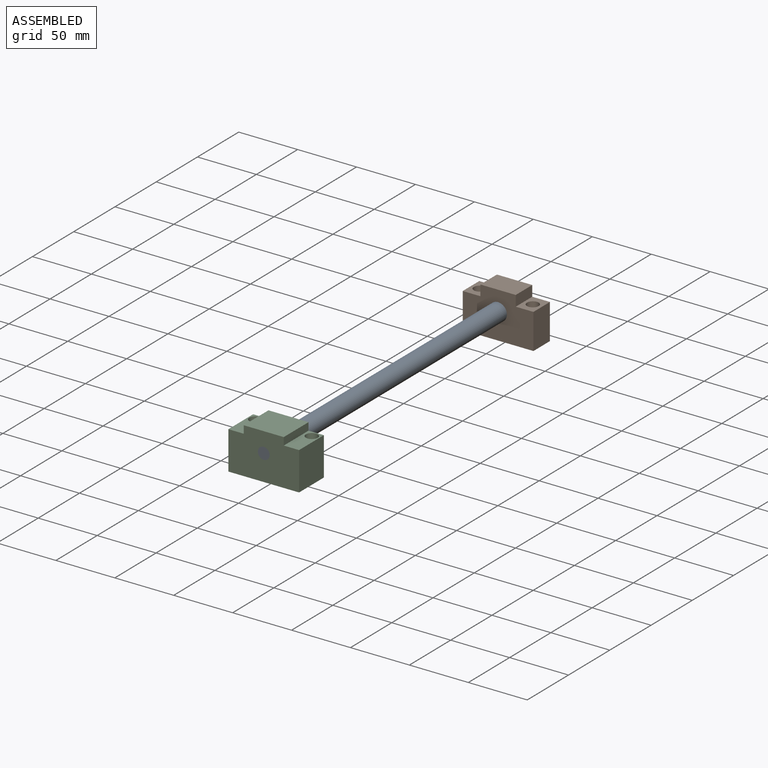
[diagram: assembled view]
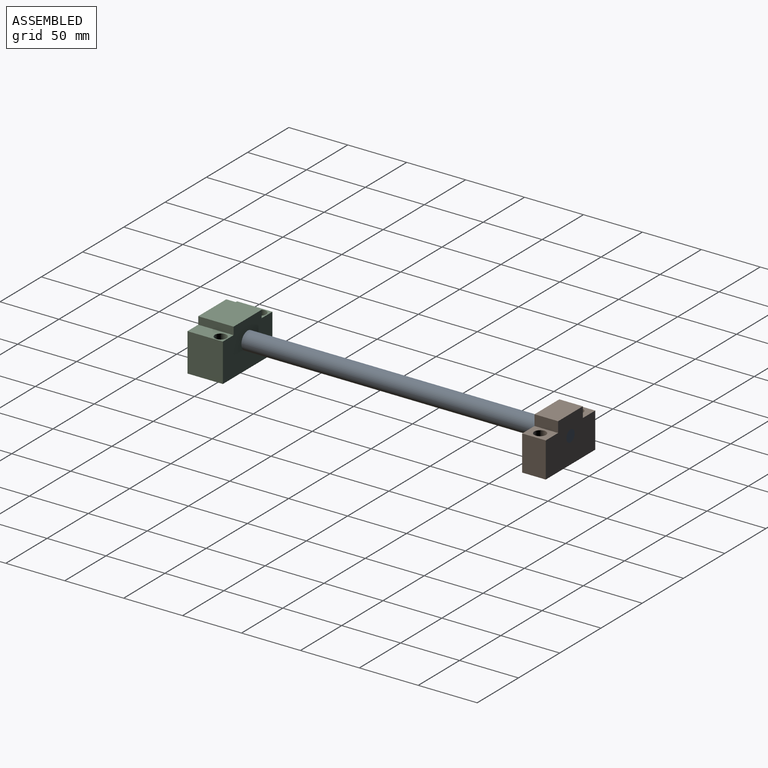
[diagram: assembled view, second angle]
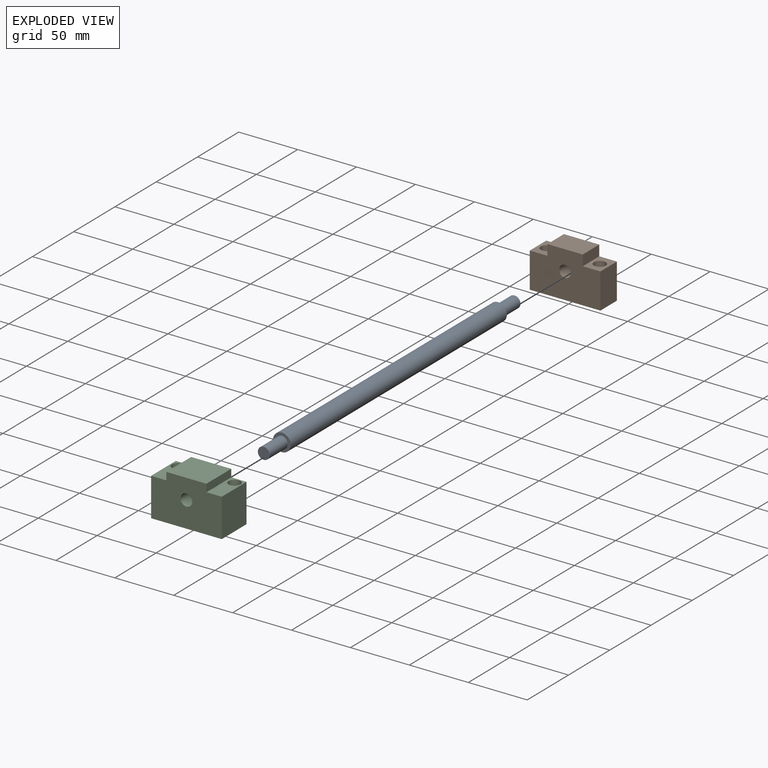
[diagram: exploded view]
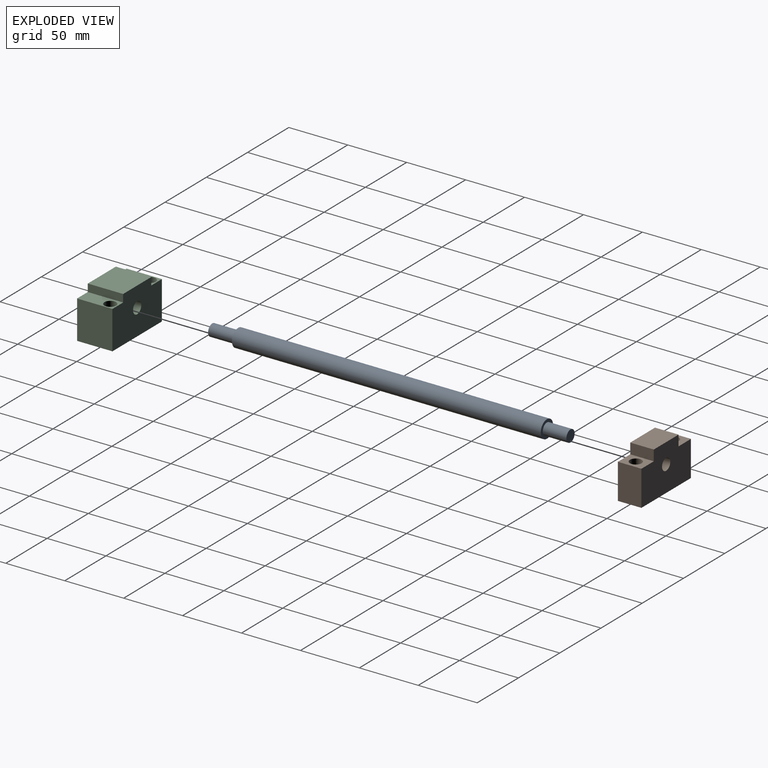
[diagram: exploded view, second angle]
ASSEMBLY  parts=3 mates=2
PART A: 7 faces, bbox 15x304x15 mm
  f0: cylinder r=7.5mm len=262mm, axis (0,1,0), area 12346.5mm2, adj f2,f5
  f1: cylinder r=5mm len=22mm, axis (0,-1,0), area 691.2mm2, adj f2,f3
  f2: plane 15x15mm, normal (0,-1,0), area 98.2mm2, adj f0,f1
  f3: plane 10x10mm, normal (0,-1,0), area 78.5mm2, adj f1
  f4: cylinder r=5mm len=20mm, axis (0,1,0), area 628.3mm2, adj f5,f6
  f5: plane 15x15mm, normal (0,1,0), area 98.2mm2, adj f0,f4
  f6: plane 10x10mm, normal (0,1,0), area 78.5mm2, adj f4
PART B: 13 faces, bbox 60x20x39 mm
  f0: plane 20x15mm, normal (0,0,1), area 221.5mm2, adj f1,f3,f5,f6,f10
  f1: plane 60x39mm, normal (0,1,0), area 1991.5mm2, adj f0,f2,f6,f7,f8,f9,f10,f11
  f2: plane 30x20mm, normal (-1,0,0), area 600mm2, adj f1,f3,f7,f8
  f3: plane 60x39mm, normal (0,-1,0), area 1991.5mm2, adj f0,f2,f6,f7,f8,f9,f10,f11
  f4: cylinder r=5mm len=30mm, axis (0,0,-1), area 942.5mm2, adj f7,f8
  f5: cylinder r=5mm len=30mm, axis (0,0,-1), area 942.5mm2, adj f0,f8
  f6: plane 30x20mm, normal (1,0,0), area 600mm2, adj f0,f1,f3,f8
  f7: plane 20x15mm, normal (0,0,1), area 221.5mm2, adj f1,f2,f3,f4,f9
  f8: plane 60x20mm, normal (0,0,-1), area 1042.9mm2, adj f1,f2,f3,f4,f5,f6
  f9: plane 20x9mm, normal (-1,0,0), area 180mm2, adj f1,f3,f7,f11
  f10: plane 20x9mm, normal (1,0,0), area 180mm2, adj f0,f1,f3,f11
  f11: plane 30x20mm, normal (0,0,1), area 600mm2, adj f1,f3,f9,f10
  f12: cylinder r=5mm len=20mm, axis (0,-1,0), area 628.3mm2, adj f1,f3
PART C: 13 faces, bbox 60x30x39 mm
  f0: plane 30x13mm, normal (0,0,1), area 311.5mm2, adj f1,f3,f5,f6,f10
  f1: plane 60x39mm, normal (0,1,0), area 2092.5mm2, adj f0,f2,f5,f7,f8,f9,f10,f11
  f2: plane 32.5x30mm, normal (-1,0,0), area 975mm2, adj f1,f3,f7,f8
  f3: plane 60x39mm, normal (0,-1,0), area 2092.5mm2, adj f0,f2,f5,f7,f8,f9,f10,f11
  f4: cylinder r=5mm len=32.5mm, axis (0,0,-1), area 1021mm2, adj f7,f8
  f5: plane 32.5x30mm, normal (1,0,0), area 975mm2, adj f0,f1,f3,f8
  f6: cylinder r=5mm len=32.5mm, axis (0,0,-1), area 1021mm2, adj f0,f8
  f7: plane 30x13mm, normal (0,0,1), area 311.5mm2, adj f1,f2,f3,f4,f9
  f8: plane 60x30mm, normal (0,0,-1), area 1642.9mm2, adj f1,f2,f3,f4,f5,f6
  f9: plane 30x6.5mm, normal (-1,0,0), area 195mm2, adj f1,f3,f7,f11
  f10: plane 30x6.5mm, normal (1,0,0), area 195mm2, adj f0,f1,f3,f11
  f11: plane 34x30mm, normal (0,0,1), area 1020mm2, adj f1,f3,f9,f10
  f12: cylinder r=5mm len=30mm, axis (0,-1,0), area 942.5mm2, adj f1,f3
PLACE A t=(-49.82,34.25,13.88)mm
PLACE B t=(-67.97,15.54,-8.12)mm
PLACE C t=(-49.82,-254.75,-8.12)mm
MATE revolute A.f1 <-> C.f12  axis (0,-1,0) through (-49.82,-269.75,13.88)mm
MATE revolute A.f1 <-> B.f12  axis (0,1,0) through (-49.82,34.25,13.88)mm
